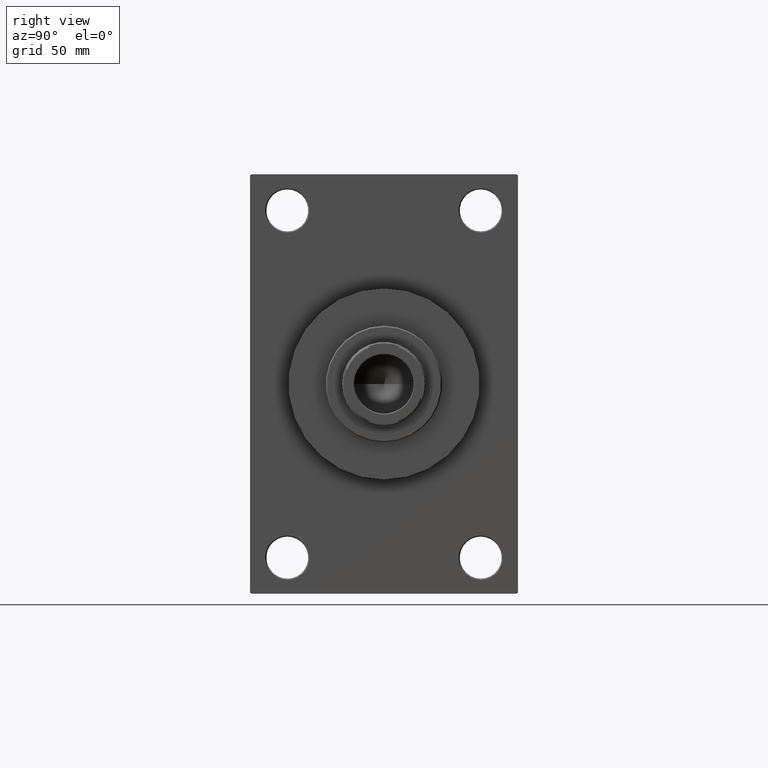
[diagram: clean part render]
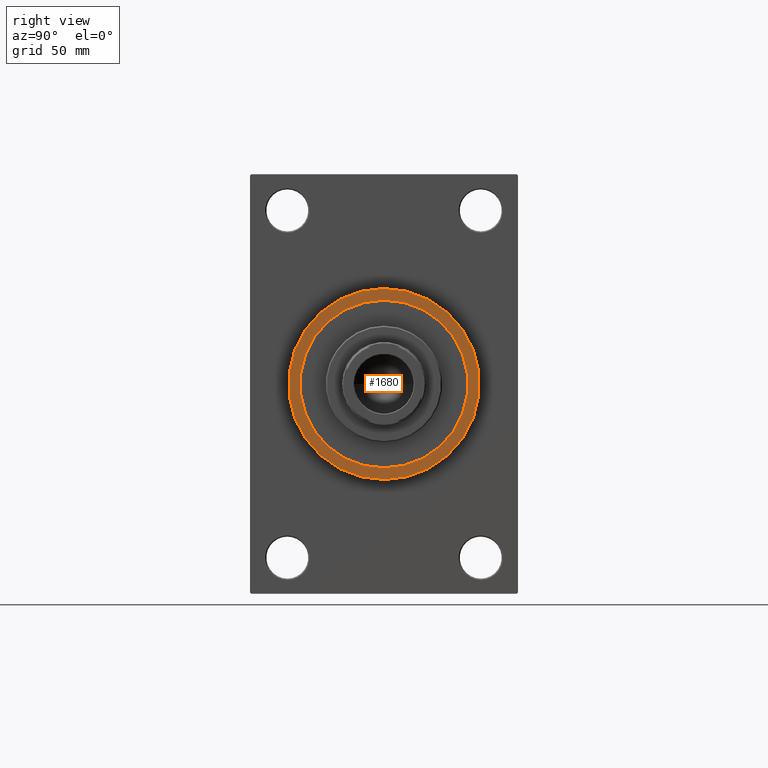
[diagram: same view with one face highlighted and labeled with its STEP entity id]
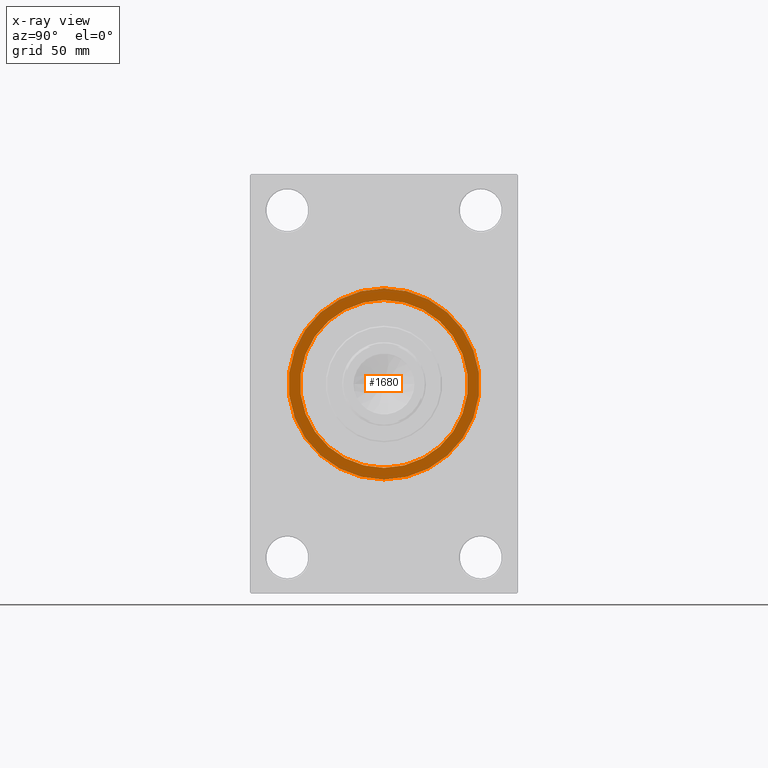
[diagram: x-ray of the same camera — body ghosted, the highlighted face saturated]
A machine part, right view. The second image highlights one B-rep face of the part: STEP entity #1680.
The next image is the same camera in x-ray: the body ghosted, the highlighted face saturated — about 0% of this face is hidden behind the body in this view.
In plain terms, the highlighted planar face has unit normal (1, 0, 0).
Its self-contained STEP definition (entity closure, byte-faithful):
#1365 = CARTESIAN_POINT ( 'NONE',  ( 179.0000000000000000, 0.000000000000000000, -36.00000000000000000 ) ) ;
#1515 = FACE_OUTER_BOUND ( 'NONE', #43422, .T. ) ;
#1680 = ADVANCED_FACE ( 'NONE', ( #34556, #1515 ), #31401, .T. ) ;
#2670 = DIRECTION ( 'NONE',  ( 1.000000000000000000, 0.000000000000000000, 0.000000000000000000 ) ) ;
#3140 = DIRECTION ( 'NONE',  ( 0.000000000000000000, 0.000000000000000000, -1.000000000000000000 ) ) ;
#4023 = DIRECTION ( 'NONE',  ( 1.000000000000000000, 0.000000000000000000, 0.000000000000000000 ) ) ;
#4104 = DIRECTION ( 'NONE',  ( 1.000000000000000000, 0.000000000000000000, 0.000000000000000000 ) ) ;
#5009 = DIRECTION ( 'NONE',  ( 1.000000000000000000, 0.000000000000000000, 0.000000000000000000 ) ) ;
#5380 = AXIS2_PLACEMENT_3D ( 'NONE', #26949, #5009, #44547 ) ;
#6688 = VERTEX_POINT ( 'NONE', #1365 ) ;
#7410 = CARTESIAN_POINT ( 'NONE',  ( 179.0000000000000000, 0.000000000000000000, 0.000000000000000000 ) ) ;
#8680 = ORIENTED_EDGE ( 'NONE', *, *, #15299, .T. ) ;
#9395 = VERTEX_POINT ( 'NONE', #42849 ) ;
#12353 = CIRCLE ( 'NONE', #23897, 41.00000000000000000 ) ;
#12779 = ORIENTED_EDGE ( 'NONE', *, *, #44808, .F. ) ;
#14536 = VERTEX_POINT ( 'NONE', #31971 ) ;
#15299 = EDGE_CURVE ( 'NONE', #14536, #28668, #12353, .T. ) ;
#15462 = AXIS2_PLACEMENT_3D ( 'NONE', #7410, #4023, #39951 ) ;
#16627 = ORIENTED_EDGE ( 'NONE', *, *, #37169, .T. ) ;
#23897 = AXIS2_PLACEMENT_3D ( 'NONE', #37133, #4104, #37841 ) ;
#23939 = CIRCLE ( 'NONE', #15462, 41.00000000000000000 ) ;
#26949 = CARTESIAN_POINT ( 'NONE',  ( 179.0000000000000000, 0.000000000000000000, 0.000000000000000000 ) ) ;
#28668 = VERTEX_POINT ( 'NONE', #43289 ) ;
#31401 = PLANE ( 'NONE',  #33879 ) ;
#31971 = CARTESIAN_POINT ( 'NONE',  ( 179.0000000000000000, 5.021051876504148963E-15, -41.00000000000000000 ) ) ;
#33418 = AXIS2_PLACEMENT_3D ( 'NONE', #36418, #2670, #3140 ) ;
#33879 = AXIS2_PLACEMENT_3D ( 'NONE', #42247, #38166, #42016 ) ;
#34303 = EDGE_CURVE ( 'NONE', #9395, #6688, #39237, .T. ) ;
#34556 = FACE_BOUND ( 'NONE', #45118, .T. ) ;
#36418 = CARTESIAN_POINT ( 'NONE',  ( 179.0000000000000000, 0.000000000000000000, 0.000000000000000000 ) ) ;
#37133 = CARTESIAN_POINT ( 'NONE',  ( 179.0000000000000000, 0.000000000000000000, 0.000000000000000000 ) ) ;
#37169 = EDGE_CURVE ( 'NONE', #28668, #14536, #23939, .T. ) ;
#37841 = DIRECTION ( 'NONE',  ( 0.000000000000000000, 0.000000000000000000, -1.000000000000000000 ) ) ;
#38166 = DIRECTION ( 'NONE',  ( 1.000000000000000000, 0.000000000000000000, 0.000000000000000000 ) ) ;
#39237 = CIRCLE ( 'NONE', #5380, 36.00000000000000000 ) ;
#39951 = DIRECTION ( 'NONE',  ( 0.000000000000000000, 0.000000000000000000, -1.000000000000000000 ) ) ;
#42016 = DIRECTION ( 'NONE',  ( 0.000000000000000000, 0.000000000000000000, -1.000000000000000000 ) ) ;
#42247 = CARTESIAN_POINT ( 'NONE',  ( 179.0000000000000000, 0.000000000000000000, 0.000000000000000000 ) ) ;
#42643 = CIRCLE ( 'NONE', #33418, 36.00000000000000000 ) ;
#42849 = CARTESIAN_POINT ( 'NONE',  ( 179.0000000000000000, 4.408728476930470856E-15, 36.00000000000000000 ) ) ;
#43289 = CARTESIAN_POINT ( 'NONE',  ( 179.0000000000000000, 0.000000000000000000, 41.00000000000000000 ) ) ;
#43422 = EDGE_LOOP ( 'NONE', ( #16627, #8680 ) ) ;
#44547 = DIRECTION ( 'NONE',  ( 0.000000000000000000, 0.000000000000000000, -1.000000000000000000 ) ) ;
#44808 = EDGE_CURVE ( 'NONE', #6688, #9395, #42643, .T. ) ;
#45118 = EDGE_LOOP ( 'NONE', ( #12779, #46567 ) ) ;
#46567 = ORIENTED_EDGE ( 'NONE', *, *, #34303, .F. ) ;